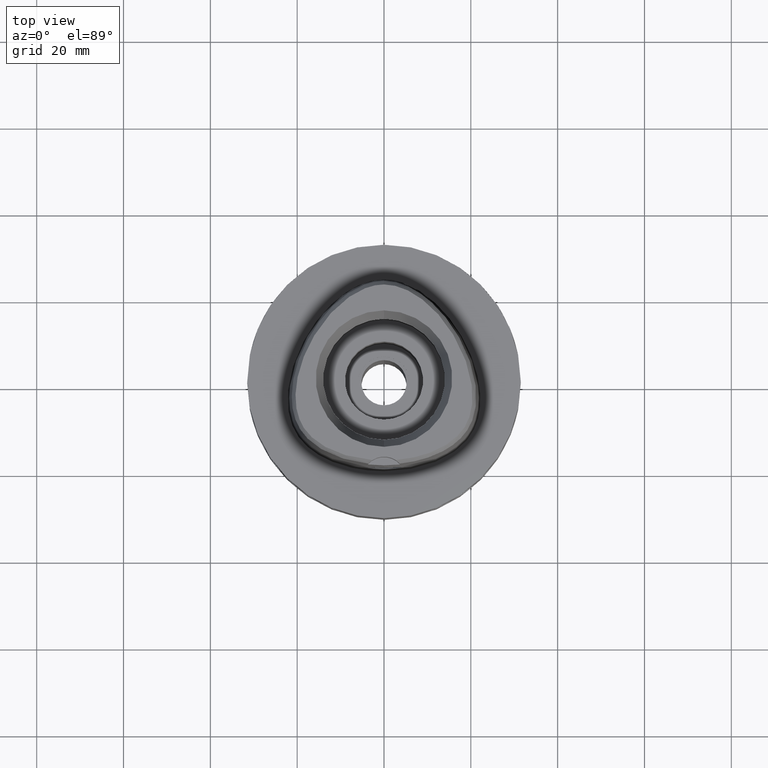
[diagram: clean part render]
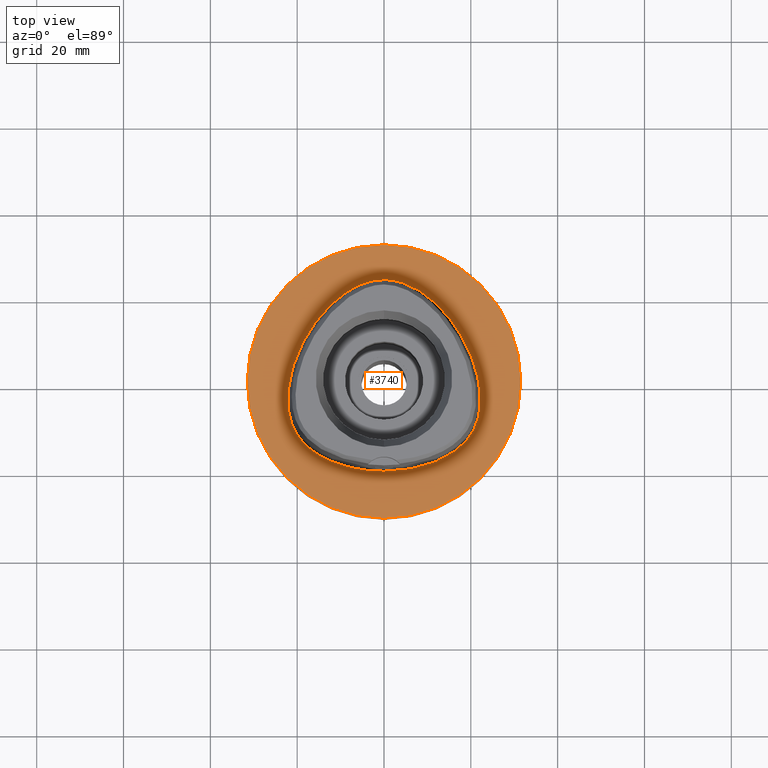
[diagram: same view with one face highlighted and labeled with its STEP entity id]
A machine part, top view. The second image highlights one B-rep face of the part: STEP entity #3740.
In plain terms, the highlighted planar face has unit normal (0, 0, -1).
Its self-contained STEP definition (entity closure, byte-faithful):
#38 = AXIS2_PLACEMENT_3D ( 'NONE', #1218, #2928, #2246 ) ;
#112 = CARTESIAN_POINT ( 'NONE',  ( -20.34961798598455829, -11.74885742211099249, -1.912133447998058677E-08 ) ) ;
#139 = ORIENTED_EDGE ( 'NONE', *, *, #310, .F. ) ;
#256 = DIRECTION ( 'NONE',  ( 0.0000000000000000000, 1.000000000000000000, 0.0000000000000000000 ) ) ;
#310 = EDGE_CURVE ( 'NONE', #2220, #2781, #5461, .T. ) ;
#449 = CARTESIAN_POINT ( 'NONE',  ( 16.95889171104185067, -15.67838865292520190, 9.600015012263801023E-07 ) ) ;
#529 = CARTESIAN_POINT ( 'NONE',  ( 7.571159422191829691, 21.31457029171603423, 9.600015012263801023E-07 ) ) ;
#535 = CARTESIAN_POINT ( 'NONE',  ( -18.06826688568953543, 10.43171875024349404, -1.912133447998058677E-08 ) ) ;
#559 = CARTESIAN_POINT ( 'NONE',  ( -21.97832647833715924, -0.2810937499163704278, -1.912133447998058677E-08 ) ) ;
#573 = ORIENTED_EDGE ( 'NONE', *, *, #5146, .F. ) ;
#579 = CARTESIAN_POINT ( 'NONE',  ( 0.8548392406080774775, 23.47499997601041244, 9.600015012263801023E-07 ) ) ;
#589 = CARTESIAN_POINT ( 'NONE',  ( -14.40795638995304984, 15.64093750030941266, -1.912133447998058677E-08 ) ) ;
#671 = AXIS2_PLACEMENT_3D ( 'NONE', #3300, #1527, #256 ) ;
#684 = CARTESIAN_POINT ( 'NONE',  ( 0.0000000000000000000, 31.50000000000000000, 0.0000000000000000000 ) ) ;
#744 = CARTESIAN_POINT ( 'NONE',  ( -6.341471019297032718, -20.29812500048203106, -1.912133447998058677E-08 ) ) ;
#838 = CARTESIAN_POINT ( 'NONE',  ( 0.0000000000000000000, 1.224646799146999965E-14, 0.0000000000000000000 ) ) ;
#879 = CARTESIAN_POINT ( 'NONE',  ( 20.34961796474343387, -11.74885740985003757, 9.600015012263801023E-07 ) ) ;
#919 = DIRECTION ( 'NONE',  ( 0.0000000000000000000, 0.0000000000000000000, -1.000000000000000000 ) ) ;
#961 = CARTESIAN_POINT ( 'NONE',  ( 18.06826686438164487, 10.43171873794421245, 9.600015012263801023E-07 ) ) ;
#1218 = CARTESIAN_POINT ( 'NONE',  ( 0.0000000000000000000, 1.284654492305999992E-14, 0.0000000000000000000 ) ) ;
#1467 = CARTESIAN_POINT ( 'NONE',  ( -7.571159434593089266, 21.31457031291172655, -1.912133447998058677E-08 ) ) ;
#1527 = DIRECTION ( 'NONE',  ( 0.0000000000000000000, 0.0000000000000000000, -1.000000000000000000 ) ) ;
#1707 = PLANE ( 'NONE',  #4995 ) ;
#1741 = CARTESIAN_POINT ( 'NONE',  ( -1.042702214882000077E-11, -20.67499999999999716, 1.261583430315999920E-13 ) ) ;
#1768 = CARTESIAN_POINT ( 'NONE',  ( 14.67337963227675601, -17.21410154158050787, 9.600015012263801023E-07 ) ) ;
#1857 = CARTESIAN_POINT ( 'NONE',  ( -19.64947365902870402, -12.82525390653053776, -1.912133447998058677E-08 ) ) ;
#1937 = EDGE_CURVE ( 'NONE', #2781, #2220, #3922, .T. ) ;
#1993 = ORIENTED_EDGE ( 'NONE', *, *, #4801, .F. ) ;
#2220 = VERTEX_POINT ( 'NONE', #2511 ) ;
#2246 = DIRECTION ( 'NONE',  ( 0.0000000000000000000, -1.000000000000000000, 0.0000000000000000000 ) ) ;
#2247 = CARTESIAN_POINT ( 'NONE',  ( 2.564517722023408108, 23.29328122637020826, 9.600015012263801023E-07 ) ) ;
#2255 = CARTESIAN_POINT ( 'NONE',  ( -21.55524826055825471, -8.996025390762305562, -1.912133447998058677E-08 ) ) ;
#2313 = CARTESIAN_POINT ( 'NONE',  ( -10.74572891090177151, 19.17433593787135493, -1.912133447998058677E-08 ) ) ;
#2511 = CARTESIAN_POINT ( 'NONE',  ( -1.042702214882000077E-11, -20.67499999999999716, 1.261583430315999920E-13 ) ) ;
#2594 = CARTESIAN_POINT ( 'NONE',  ( 21.55524823701461656, -8.996025383763445404, 9.600015012263801023E-07 ) ) ;
#2623 = VERTEX_POINT ( 'NONE', #684 ) ;
#2662 = CARTESIAN_POINT ( 'NONE',  ( 6.341471014948040441, -20.29812497625099610, 9.600015012263801023E-07 ) ) ;
#2673 = CARTESIAN_POINT ( 'NONE',  ( 14.40795637114584160, 15.64093748443599274, 9.600015012263801023E-07 ) ) ;
#2759 = CARTESIAN_POINT ( 'NONE',  ( -22.24453907902603689, -4.100468749996653450, -1.912133447998058677E-08 ) ) ;
#2781 = VERTEX_POINT ( 'NONE', #5127 ) ;
#2903 = CARTESIAN_POINT ( 'NONE',  ( -11.23259756743441606, -18.89324218795536225, -1.912133447998058677E-08 ) ) ;
#2928 = DIRECTION ( 'NONE',  ( 0.0000000000000000000, 0.0000000000000000000, -1.000000000000000000 ) ) ;
#3006 = CARTESIAN_POINT ( 'NONE',  ( 19.64947363918574297, -12.82525389211982336, 9.600015012263801023E-07 ) ) ;
#3078 = FACE_BOUND ( 'NONE', #4847, .T. ) ;
#3105 = CIRCLE ( 'NONE', #671, 31.50000000000000000 ) ;
#3183 = CARTESIAN_POINT ( 'NONE',  ( -20.74942740924455364, 4.657187500162833338, -1.912133447998058677E-08 ) ) ;
#3300 = CARTESIAN_POINT ( 'NONE',  ( 0.0000000000000000000, 1.284654492305999992E-14, 0.0000000000000000000 ) ) ;
#3430 = CARTESIAN_POINT ( 'NONE',  ( 11.23259755903358048, -18.89324216482072671, 9.600015012263801023E-07 ) ) ;
#3456 = CARTESIAN_POINT ( 'NONE',  ( 18.56841063393556368, -14.16937986624966861, 9.600015012263801023E-07 ) ) ;
#3485 = CARTESIAN_POINT ( 'NONE',  ( 21.97832645410822039, -0.2810937541987427180, 9.600015012263801023E-07 ) ) ;
#3534 = CARTESIAN_POINT ( 'NONE',  ( 5.098437008326023090, 22.52602536825222757, 9.600015012263801023E-07 ) ) ;
#3543 = CARTESIAN_POINT ( 'NONE',  ( -16.95889172623522256, -15.67838867225354171, -1.912133447998058677E-08 ) ) ;
#3575 = CARTESIAN_POINT ( 'NONE',  ( -14.67337964442923592, -17.21410156291820570, -1.912133447998058677E-08 ) ) ;
#3733 = ORIENTED_EDGE ( 'NONE', *, *, #1937, .F. ) ;
#3740 = ADVANCED_FACE ( 'NONE', ( #5201, #3078 ), #1707, .F. ) ;
#3837 = CARTESIAN_POINT ( 'NONE',  ( 0.0000000000000000000, -31.50000000000000000, 0.0000000000000000000 ) ) ;
#3916 = CARTESIAN_POINT ( 'NONE',  ( -20.93173252254995020, -10.60431640644815054, -1.912133447998058677E-08 ) ) ;
#3922 = B_SPLINE_CURVE_WITH_KNOTS ( 'NONE', 3,
 ( #5322, #4422, #4398, #4846, #1467, #2313, #589, #535, #3183, #559, #2759, #4478, #2255, #3916, #112, #1857, #3970, #3543, #3575, #2903, #744, #5021, #4510 ),
 .UNSPECIFIED., .F., .F.,
 ( 4, 1, 1, 1, 1, 1, 1, 1, 1, 1, 1, 1, 1, 1, 1, 1, 1, 1, 1, 1, 4 ),
 ( 0.0000000000000000000, 0.04166666666751999565, 0.08333333333413001087, 0.1250000000007999990, 0.1666666666674000152, 0.2500000000006000200, 0.3333333333337999971, 0.4166666666671000052, 0.5000000000002999823, 0.5416666666670000296, 0.5833333333335000148, 0.6250000000001999512, 0.6458333333335000148, 0.6666666666667999674, 0.6875000000001000311, 0.7083333333333999837, 0.7500000000000000000, 0.7916666666667000474, 0.8333333333333000637, 0.9166666666666000163, 1.000000000000000000 ),
 .UNSPECIFIED. ) ;
#3970 = CARTESIAN_POINT ( 'NONE',  ( -18.56841065176902461, -14.16937988314082020, -1.912133447998058677E-08 ) ) ;
#4031 = VERTEX_POINT ( 'NONE', #3837 ) ;
#4316 = CARTESIAN_POINT ( 'NONE',  ( 22.05732871936089268, -6.847636715320392753, 9.600015012263801023E-07 ) ) ;
#4390 = CARTESIAN_POINT ( 'NONE',  ( 10.74572889507364515, 19.17433591902356582, 9.600015012263801023E-07 ) ) ;
#4398 = CARTESIAN_POINT ( 'NONE',  ( -2.564517727055315888, 23.29328125047649678, -1.912133447998058677E-08 ) ) ;
#4422 = CARTESIAN_POINT ( 'NONE',  ( -0.8548392423344450819, 23.47500000048349733, -1.912133447998058677E-08 ) ) ;
#4478 = CARTESIAN_POINT ( 'NONE',  ( -22.05732874369462593, -6.847636718818196577, -1.912133447998058677E-08 ) ) ;
#4501 = CARTESIAN_POINT ( 'NONE',  ( 5.537090535209000039E-11, 23.47499999999000053, 1.232347557333999743E-13 ) ) ;
#4510 = CARTESIAN_POINT ( 'NONE',  ( -1.042702214882000077E-11, -20.67499999999999716, 1.261583430315999920E-13 ) ) ;
#4727 = CARTESIAN_POINT ( 'NONE',  ( 20.93173250015756537, -10.60431639647454283, 9.600015012263801023E-07 ) ) ;
#4801 = EDGE_CURVE ( 'NONE', #2623, #4031, #3105, .T. ) ;
#4805 = CARTESIAN_POINT ( 'NONE',  ( 2.113823671640779889, -20.67499997599661654, 9.600015012263801023E-07 ) ) ;
#4846 = CARTESIAN_POINT ( 'NONE',  ( -5.098437017461368015, 22.52602539107105173, -1.912133447998058677E-08 ) ) ;
#4847 = EDGE_LOOP ( 'NONE', ( #3733, #139 ) ) ;
#4891 = CIRCLE ( 'NONE', #38, 31.50000000000000000 ) ;
#4950 = EDGE_LOOP ( 'NONE', ( #1993, #573 ) ) ;
#4995 = AXIS2_PLACEMENT_3D ( 'NONE', #838, #919, #5228 ) ;
#5021 = CARTESIAN_POINT ( 'NONE',  ( -2.113823673093373490, -20.67500000047994746, -1.912133447998058677E-08 ) ) ;
#5127 = CARTESIAN_POINT ( 'NONE',  ( 5.537090535209000039E-11, 23.47499999999000053, 1.232347557333999743E-13 ) ) ;
#5146 = EDGE_CURVE ( 'NONE', #4031, #2623, #4891, .T. ) ;
#5180 = CARTESIAN_POINT ( 'NONE',  ( 22.24453905447484914, -4.100468750140862539, 9.600015012263801023E-07 ) ) ;
#5201 = FACE_OUTER_BOUND ( 'NONE', #4950, .T. ) ;
#5228 = DIRECTION ( 'NONE',  ( 0.0000000000000000000, -1.000000000000000000, 0.0000000000000000000 ) ) ;
#5236 = CARTESIAN_POINT ( 'NONE',  ( 20.74942738609235349, 4.657187491816650926, 9.600015012263801023E-07 ) ) ;
#5322 = CARTESIAN_POINT ( 'NONE',  ( 5.537090535209000039E-11, 23.47499999999000053, 1.232347557333999743E-13 ) ) ;
#5461 = B_SPLINE_CURVE_WITH_KNOTS ( 'NONE', 3,
 ( #1741, #4805, #2662, #3430, #1768, #449, #3456, #3006, #879, #4727, #2594, #4316, #5180, #3485, #5236, #961, #2673, #4390, #529, #3534, #2247, #579, #4501 ),
 .UNSPECIFIED., .F., .F.,
 ( 4, 1, 1, 1, 1, 1, 1, 1, 1, 1, 1, 1, 1, 1, 1, 1, 1, 1, 1, 1, 4 ),
 ( 0.0000000000000000000, 0.08333333333343000138, 0.1666666666668000230, 0.2083333333333000081, 0.2500000000000000000, 0.2916666666666999919, 0.3125000000000000000, 0.3333333333333000081, 0.3541666666666999919, 0.3750000000000000000, 0.4166666666666000163, 0.4583333333332000326, 0.4999999999998999689, 0.5833333333332000326, 0.6666666666664999852, 0.7499999999998000488, 0.8333333333329999704, 0.8749999999997000177, 0.9166666666664000651, 0.9583333333329999704, 1.000000000000000000 ),
 .UNSPECIFIED. ) ;